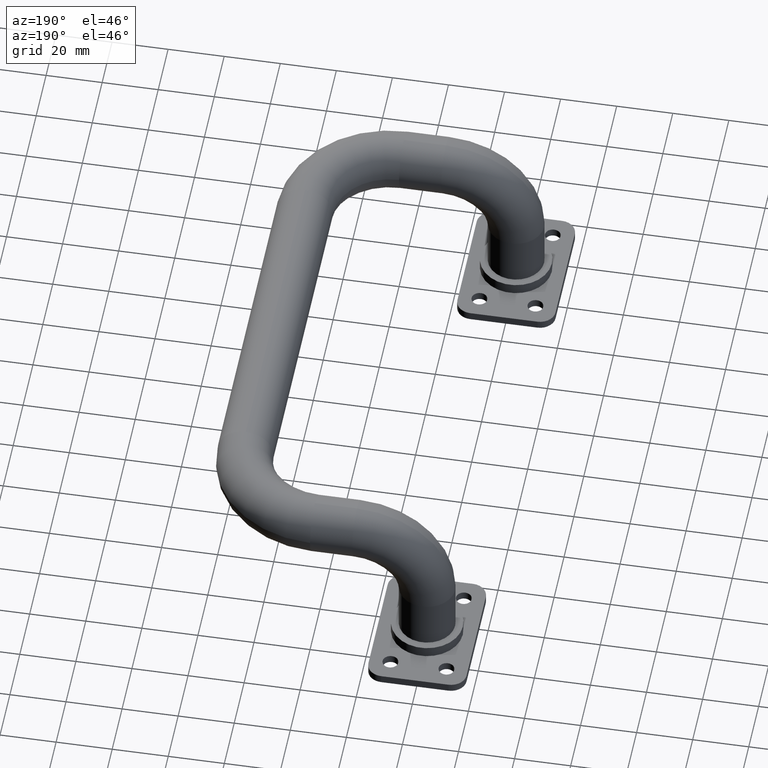
[diagram: clean part render]
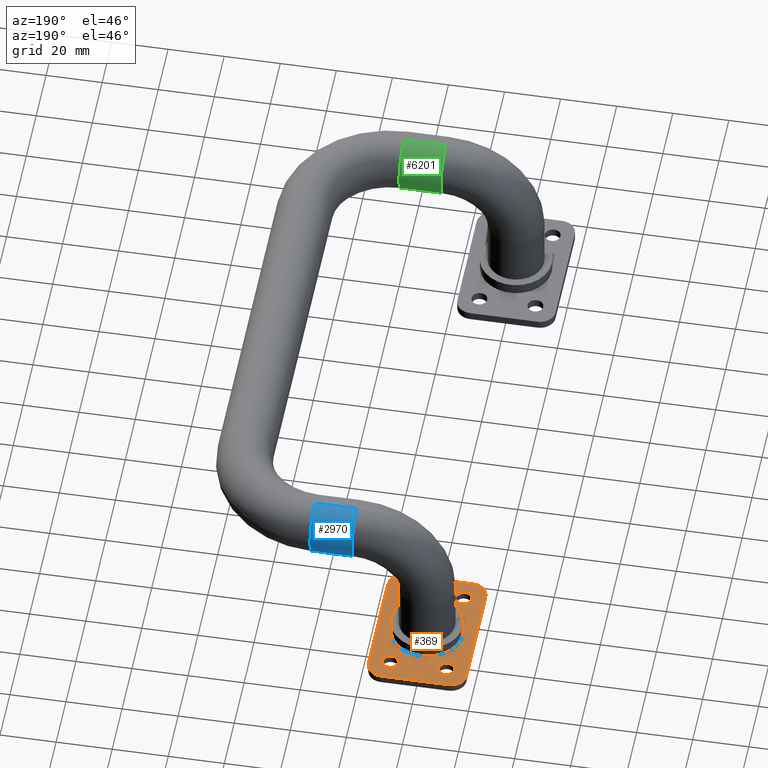
[diagram: same view with three faces highlighted in distinct colors, each labeled with its STEP entity id]
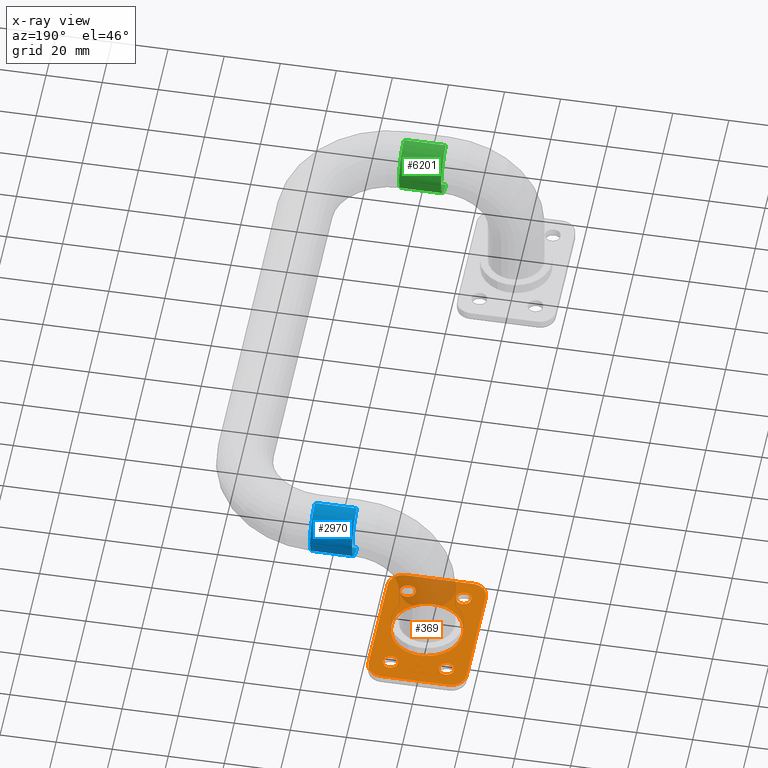
[diagram: x-ray of the same camera — body ghosted, the three highlighted faces saturated]
A machine part, auxiliary view with three faces highlighted in distinct colors.
The next image is the same camera in x-ray (body ghosted, the three faces saturated) — at least one of them is partly hidden behind the body in this view.
Their STEP definitions:

[orange] entity #369 — the highlighted planar face has unit normal (0, 0, -1).
#236 = DIRECTION ( 'NONE',  ( 0.000000000000000000, -0.000000000000000000, 1.000000000000000000 ) ) ;
#244 = AXIS2_PLACEMENT_3D ( 'NONE', #7067, #236, #5614 ) ;
#246 = CARTESIAN_POINT ( 'NONE',  ( -10.00000000000000533, 72.49999999999998579, 3.000000000000000000 ) ) ;
#272 = VERTEX_POINT ( 'NONE', #4101 ) ;
#369 = ADVANCED_FACE ( 'NONE', ( #6875, #7717, #1266, #3383, #8926, #755 ), #4878, .F. ) ;
#388 = EDGE_CURVE ( 'NONE', #272, #9754, #1256, .T. ) ;
#468 = EDGE_CURVE ( 'NONE', #3583, #5399, #1526, .T. ) ;
#524 = DIRECTION ( 'NONE',  ( 0.000000000000000000, 0.000000000000000000, -1.000000000000000000 ) ) ;
#628 = ORIENTED_EDGE ( 'NONE', *, *, #4824, .F. ) ;
#671 = AXIS2_PLACEMENT_3D ( 'NONE', #5270, #5212, #4433 ) ;
#720 = CARTESIAN_POINT ( 'NONE',  ( -7.200000000000007283, 72.49999999999998579, 3.000000000000000000 ) ) ;
#755 = FACE_BOUND ( 'NONE', #2629, .T. ) ;
#780 = AXIS2_PLACEMENT_3D ( 'NONE', #4768, #4701, #3075 ) ;
#798 = DIRECTION ( 'NONE',  ( 0.000000000000000000, -0.000000000000000000, 1.000000000000000000 ) ) ;
#809 = DIRECTION ( 'NONE',  ( -1.387778780781445676E-16, -1.000000000000000000, 0.000000000000000000 ) ) ;
#974 = ORIENTED_EDGE ( 'NONE', *, *, #3792, .F. ) ;
#991 = VERTEX_POINT ( 'NONE', #1914 ) ;
#1233 = EDGE_LOOP ( 'NONE', ( #628, #2839, #974, #2896, #1866, #7324, #4011, #5025 ) ) ;
#1241 = DIRECTION ( 'NONE',  ( 0.000000000000000000, -0.000000000000000000, 1.000000000000000000 ) ) ;
#1254 = CIRCLE ( 'NONE', #9539, 2.799999999999997158 ) ;
#1256 = CIRCLE ( 'NONE', #3942, 2.799999999999997158 ) ;
#1266 = FACE_BOUND ( 'NONE', #8265, .T. ) ;
#1526 = CIRCLE ( 'NONE', #671, 2.799999999999997158 ) ;
#1553 = CARTESIAN_POINT ( 'NONE',  ( -12.00000000000001066, 70.50000000000000000, 3.000000000000000000 ) ) ;
#1555 = EDGE_LOOP ( 'NONE', ( #7914, #7457 ) ) ;
#1558 = CIRCLE ( 'NONE', #4240, 5.500000000000000000 ) ;
#1598 = VERTEX_POINT ( 'NONE', #4202 ) ;
#1699 = CARTESIAN_POINT ( 'NONE',  ( 12.79999999999999183, 72.49999999999998579, 3.000000000000000000 ) ) ;
#1709 = CARTESIAN_POINT ( 'NONE',  ( -12.00000000000001066, 64.99999999999998579, 3.000000000000000000 ) ) ;
#1866 = ORIENTED_EDGE ( 'NONE', *, *, #7658, .F. ) ;
#1900 = VERTEX_POINT ( 'NONE', #5418 ) ;
#1914 = CARTESIAN_POINT ( 'NONE',  ( 17.50000000000000000, 109.4999999999999858, 3.000000000000000000 ) ) ;
#2107 = DIRECTION ( 'NONE',  ( -1.000000000000000000, 0.000000000000000000, 0.000000000000000000 ) ) ;
#2168 = DIRECTION ( 'NONE',  ( 0.000000000000000000, -0.000000000000000000, 1.000000000000000000 ) ) ;
#2189 = CARTESIAN_POINT ( 'NONE',  ( 17.50000000000000000, 114.9999999999999858, 3.000000000000000000 ) ) ;
#2197 = DIRECTION ( 'NONE',  ( -1.000000000000000000, 0.000000000000000000, 0.000000000000000000 ) ) ;
#2290 = CARTESIAN_POINT ( 'NONE',  ( -1.393068780271001328E-15, 90.00000000000000000, 3.000000000000000000 ) ) ;
#2303 = DIRECTION ( 'NONE',  ( -1.000000000000000000, 0.000000000000000000, 0.000000000000000000 ) ) ;
#2353 = CARTESIAN_POINT ( 'NONE',  ( 12.79999999999999538, 107.4999999999999858, 3.000000000000000000 ) ) ;
#2357 = CARTESIAN_POINT ( 'NONE',  ( -12.75000000000000000, 90.00000000000000000, 3.000000000000000000 ) ) ;
#2479 = AXIS2_PLACEMENT_3D ( 'NONE', #8093, #1241, #6600 ) ;
#2481 = CIRCLE ( 'NONE', #9364, 2.799999999999997602 ) ;
#2483 = VERTEX_POINT ( 'NONE', #6283 ) ;
#2546 = DIRECTION ( 'NONE',  ( 0.000000000000000000, 0.000000000000000000, -1.000000000000000000 ) ) ;
#2629 = EDGE_LOOP ( 'NONE', ( #9452, #2901 ) ) ;
#2678 = DIRECTION ( 'NONE',  ( 0.000000000000000000, -0.000000000000000000, 1.000000000000000000 ) ) ;
#2839 = ORIENTED_EDGE ( 'NONE', *, *, #6858, .T. ) ;
#2896 = ORIENTED_EDGE ( 'NONE', *, *, #5530, .T. ) ;
#2898 = DIRECTION ( 'NONE',  ( -1.000000000000000000, 0.000000000000000000, 0.000000000000000000 ) ) ;
#2901 = ORIENTED_EDGE ( 'NONE', *, *, #4809, .F. ) ;
#3035 = CIRCLE ( 'NONE', #4381, 5.500000000000000000 ) ;
#3075 = DIRECTION ( 'NONE',  ( -1.000000000000000000, 0.000000000000000000, 0.000000000000000000 ) ) ;
#3205 = VERTEX_POINT ( 'NONE', #5310 ) ;
#3383 = FACE_BOUND ( 'NONE', #8494, .T. ) ;
#3438 = CIRCLE ( 'NONE', #7244, 2.799999999999997602 ) ;
#3583 = VERTEX_POINT ( 'NONE', #5119 ) ;
#3677 = CIRCLE ( 'NONE', #2479, 5.500000000000000000 ) ;
#3755 = CIRCLE ( 'NONE', #780, 2.799999999999997158 ) ;
#3792 = EDGE_CURVE ( 'NONE', #9734, #5362, #5753, .T. ) ;
#3830 = CARTESIAN_POINT ( 'NONE',  ( -17.50000000000000711, 70.50000000000000000, 3.000000000000000000 ) ) ;
#3846 = EDGE_CURVE ( 'NONE', #991, #8681, #1558, .T. ) ;
#3942 = AXIS2_PLACEMENT_3D ( 'NONE', #246, #8612, #8019 ) ;
#3998 = VECTOR ( 'NONE', #8533, 1000.000000000000000 ) ;
#4011 = ORIENTED_EDGE ( 'NONE', *, *, #7573, .F. ) ;
#4101 = CARTESIAN_POINT ( 'NONE',  ( -12.80000000000000249, 72.49999999999998579, 3.000000000000000000 ) ) ;
#4174 = CARTESIAN_POINT ( 'NONE',  ( 0.000000000000000000, 0.000000000000000000, 3.000000000000000000 ) ) ;
#4202 = CARTESIAN_POINT ( 'NONE',  ( -12.00000000000000355, 114.9999999999999858, 3.000000000000000000 ) ) ;
#4240 = AXIS2_PLACEMENT_3D ( 'NONE', #7264, #2678, #7365 ) ;
#4267 = CIRCLE ( 'NONE', #9912, 2.799999999999997602 ) ;
#4290 = CARTESIAN_POINT ( 'NONE',  ( 9.999999999999998224, 107.4999999999999858, 3.000000000000000000 ) ) ;
#4304 = AXIS2_PLACEMENT_3D ( 'NONE', #1553, #798, #2303 ) ;
#4333 = EDGE_CURVE ( 'NONE', #5209, #6792, #5021, .T. ) ;
#4381 = AXIS2_PLACEMENT_3D ( 'NONE', #7495, #2168, #2898 ) ;
#4433 = DIRECTION ( 'NONE',  ( -1.000000000000000000, 0.000000000000000000, 0.000000000000000000 ) ) ;
#4561 = EDGE_CURVE ( 'NONE', #9334, #8492, #2481, .T. ) ;
#4667 = CARTESIAN_POINT ( 'NONE',  ( 17.50000000000000000, 114.9999999999999858, 3.000000000000000000 ) ) ;
#4669 = DIRECTION ( 'NONE',  ( 0.000000000000000000, 0.000000000000000000, -1.000000000000000000 ) ) ;
#4701 = DIRECTION ( 'NONE',  ( 0.000000000000000000, 0.000000000000000000, -1.000000000000000000 ) ) ;
#4722 = DIRECTION ( 'NONE',  ( -1.000000000000000000, 0.000000000000000000, 0.000000000000000000 ) ) ;
#4761 = EDGE_CURVE ( 'NONE', #9152, #1900, #3438, .T. ) ;
#4768 = CARTESIAN_POINT ( 'NONE',  ( -10.00000000000000533, 72.49999999999998579, 3.000000000000000000 ) ) ;
#4809 = EDGE_CURVE ( 'NONE', #6792, #5209, #5747, .T. ) ;
#4824 = EDGE_CURVE ( 'NONE', #5628, #3205, #7634, .T. ) ;
#4878 = PLANE ( 'NONE',  #5703 ) ;
#4928 = CARTESIAN_POINT ( 'NONE',  ( -17.50000000000000000, 114.9999999999999858, 3.000000000000000000 ) ) ;
#5021 = CIRCLE ( 'NONE', #5256, 12.74999999999999822 ) ;
#5025 = ORIENTED_EDGE ( 'NONE', *, *, #8368, .T. ) ;
#5094 = DIRECTION ( 'NONE',  ( -1.000000000000000000, 0.000000000000000000, 0.000000000000000000 ) ) ;
#5119 = CARTESIAN_POINT ( 'NONE',  ( -7.200000000000003730, 107.4999999999999858, 3.000000000000000000 ) ) ;
#5209 = VERTEX_POINT ( 'NONE', #2357 ) ;
#5212 = DIRECTION ( 'NONE',  ( 0.000000000000000000, 0.000000000000000000, -1.000000000000000000 ) ) ;
#5256 = AXIS2_PLACEMENT_3D ( 'NONE', #2290, #9134, #2197 ) ;
#5270 = CARTESIAN_POINT ( 'NONE',  ( -10.00000000000000178, 107.4999999999999858, 3.000000000000000000 ) ) ;
#5310 = CARTESIAN_POINT ( 'NONE',  ( -17.50000000000000000, 109.4999999999999858, 3.000000000000000000 ) ) ;
#5362 = VERTEX_POINT ( 'NONE', #1709 ) ;
#5399 = VERTEX_POINT ( 'NONE', #8902 ) ;
#5418 = CARTESIAN_POINT ( 'NONE',  ( 7.199999999999997513, 72.49999999999998579, 3.000000000000000000 ) ) ;
#5530 = EDGE_CURVE ( 'NONE', #9734, #2483, #3677, .T. ) ;
#5589 = CIRCLE ( 'NONE', #4304, 5.499999999999998224 ) ;
#5612 = VECTOR ( 'NONE', #9571, 1000.000000000000000 ) ;
#5614 = DIRECTION ( 'NONE',  ( -1.000000000000000000, 0.000000000000000000, 0.000000000000000000 ) ) ;
#5628 = VERTEX_POINT ( 'NONE', #3830 ) ;
#5703 = AXIS2_PLACEMENT_3D ( 'NONE', #4174, #6492, #7075 ) ;
#5747 = CIRCLE ( 'NONE', #244, 12.74999999999999822 ) ;
#5753 = LINE ( 'NONE', #8097, #9831 ) ;
#6048 = ORIENTED_EDGE ( 'NONE', *, *, #7693, .T. ) ;
#6196 = DIRECTION ( 'NONE',  ( 0.000000000000000000, 0.000000000000000000, -1.000000000000000000 ) ) ;
#6283 = CARTESIAN_POINT ( 'NONE',  ( 17.49999999999999645, 70.50000000000000000, 3.000000000000000000 ) ) ;
#6491 = CARTESIAN_POINT ( 'NONE',  ( 12.00000000000000000, 114.9999999999999858, 3.000000000000000000 ) ) ;
#6492 = DIRECTION ( 'NONE',  ( 0.000000000000000000, 0.000000000000000000, -1.000000000000000000 ) ) ;
#6600 = DIRECTION ( 'NONE',  ( -1.000000000000000000, 0.000000000000000000, 0.000000000000000000 ) ) ;
#6792 = VERTEX_POINT ( 'NONE', #8229 ) ;
#6838 = ORIENTED_EDGE ( 'NONE', *, *, #388, .T. ) ;
#6858 = EDGE_CURVE ( 'NONE', #5628, #5362, #5589, .T. ) ;
#6875 = FACE_OUTER_BOUND ( 'NONE', #1233, .T. ) ;
#6940 = EDGE_CURVE ( 'NONE', #8492, #9334, #4267, .T. ) ;
#7067 = CARTESIAN_POINT ( 'NONE',  ( -1.393068780271001328E-15, 90.00000000000000000, 3.000000000000000000 ) ) ;
#7075 = DIRECTION ( 'NONE',  ( -1.000000000000000000, 0.000000000000000000, 0.000000000000000000 ) ) ;
#7103 = ORIENTED_EDGE ( 'NONE', *, *, #4761, .T. ) ;
#7134 = CARTESIAN_POINT ( 'NONE',  ( 9.999999999999998224, 107.4999999999999858, 3.000000000000000000 ) ) ;
#7237 = DIRECTION ( 'NONE',  ( -1.000000000000000000, 0.000000000000000000, 0.000000000000000000 ) ) ;
#7238 = VECTOR ( 'NONE', #809, 1000.000000000000000 ) ;
#7244 = AXIS2_PLACEMENT_3D ( 'NONE', #9266, #4669, #8534 ) ;
#7264 = CARTESIAN_POINT ( 'NONE',  ( 12.00000000000000000, 109.4999999999999858, 3.000000000000000000 ) ) ;
#7324 = ORIENTED_EDGE ( 'NONE', *, *, #3846, .T. ) ;
#7365 = DIRECTION ( 'NONE',  ( -1.000000000000000000, 0.000000000000000000, 0.000000000000000000 ) ) ;
#7374 = CARTESIAN_POINT ( 'NONE',  ( 7.200000000000001066, 107.4999999999999858, 3.000000000000000000 ) ) ;
#7457 = ORIENTED_EDGE ( 'NONE', *, *, #6940, .T. ) ;
#7495 = CARTESIAN_POINT ( 'NONE',  ( -12.00000000000000178, 109.4999999999999858, 3.000000000000000000 ) ) ;
#7573 = EDGE_CURVE ( 'NONE', #1598, #8681, #9899, .T. ) ;
#7634 = LINE ( 'NONE', #4928, #5612 ) ;
#7658 = EDGE_CURVE ( 'NONE', #991, #2483, #9549, .T. ) ;
#7693 = EDGE_CURVE ( 'NONE', #9754, #272, #3755, .T. ) ;
#7717 = FACE_BOUND ( 'NONE', #1555, .T. ) ;
#7726 = CARTESIAN_POINT ( 'NONE',  ( 9.999999999999994671, 72.49999999999998579, 3.000000000000000000 ) ) ;
#7914 = ORIENTED_EDGE ( 'NONE', *, *, #4561, .T. ) ;
#8019 = DIRECTION ( 'NONE',  ( -1.000000000000000000, 0.000000000000000000, 0.000000000000000000 ) ) ;
#8049 = ORIENTED_EDGE ( 'NONE', *, *, #468, .T. ) ;
#8093 = CARTESIAN_POINT ( 'NONE',  ( 11.99999999999999467, 70.50000000000000000, 3.000000000000000000 ) ) ;
#8097 = CARTESIAN_POINT ( 'NONE',  ( 17.49999999999999645, 64.99999999999998579, 3.000000000000000000 ) ) ;
#8229 = CARTESIAN_POINT ( 'NONE',  ( 12.74999999999999645, 90.00000000000000000, 3.000000000000000000 ) ) ;
#8265 = EDGE_LOOP ( 'NONE', ( #8675, #8049 ) ) ;
#8368 = EDGE_CURVE ( 'NONE', #1598, #3205, #3035, .T. ) ;
#8492 = VERTEX_POINT ( 'NONE', #2353 ) ;
#8494 = EDGE_LOOP ( 'NONE', ( #9820, #7103 ) ) ;
#8533 = DIRECTION ( 'NONE',  ( 1.000000000000000000, -0.000000000000000000, -0.000000000000000000 ) ) ;
#8534 = DIRECTION ( 'NONE',  ( -1.000000000000000000, 0.000000000000000000, 0.000000000000000000 ) ) ;
#8612 = DIRECTION ( 'NONE',  ( 0.000000000000000000, 0.000000000000000000, -1.000000000000000000 ) ) ;
#8675 = ORIENTED_EDGE ( 'NONE', *, *, #8930, .T. ) ;
#8681 = VERTEX_POINT ( 'NONE', #6491 ) ;
#8836 = EDGE_LOOP ( 'NONE', ( #6838, #6048 ) ) ;
#8874 = DIRECTION ( 'NONE',  ( 0.000000000000000000, 0.000000000000000000, -1.000000000000000000 ) ) ;
#8902 = CARTESIAN_POINT ( 'NONE',  ( -12.79999999999999893, 107.4999999999999858, 3.000000000000000000 ) ) ;
#8909 = CARTESIAN_POINT ( 'NONE',  ( 11.99999999999999467, 64.99999999999998579, 3.000000000000000000 ) ) ;
#8926 = FACE_BOUND ( 'NONE', #8836, .T. ) ;
#8930 = EDGE_CURVE ( 'NONE', #5399, #3583, #1254, .T. ) ;
#9134 = DIRECTION ( 'NONE',  ( 0.000000000000000000, -0.000000000000000000, 1.000000000000000000 ) ) ;
#9152 = VERTEX_POINT ( 'NONE', #1699 ) ;
#9266 = CARTESIAN_POINT ( 'NONE',  ( 9.999999999999994671, 72.49999999999998579, 3.000000000000000000 ) ) ;
#9277 = AXIS2_PLACEMENT_3D ( 'NONE', #7726, #6196, #4722 ) ;
#9334 = VERTEX_POINT ( 'NONE', #7374 ) ;
#9364 = AXIS2_PLACEMENT_3D ( 'NONE', #7134, #2546, #7237 ) ;
#9452 = ORIENTED_EDGE ( 'NONE', *, *, #4333, .F. ) ;
#9516 = CIRCLE ( 'NONE', #9277, 2.799999999999997602 ) ;
#9539 = AXIS2_PLACEMENT_3D ( 'NONE', #9722, #524, #2107 ) ;
#9549 = LINE ( 'NONE', #4667, #7238 ) ;
#9571 = DIRECTION ( 'NONE',  ( 1.387778780781445676E-16, 1.000000000000000000, -0.000000000000000000 ) ) ;
#9702 = DIRECTION ( 'NONE',  ( -1.000000000000000000, 0.000000000000000000, 0.000000000000000000 ) ) ;
#9722 = CARTESIAN_POINT ( 'NONE',  ( -10.00000000000000178, 107.4999999999999858, 3.000000000000000000 ) ) ;
#9734 = VERTEX_POINT ( 'NONE', #8909 ) ;
#9754 = VERTEX_POINT ( 'NONE', #720 ) ;
#9820 = ORIENTED_EDGE ( 'NONE', *, *, #9841, .T. ) ;
#9831 = VECTOR ( 'NONE', #5094, 1000.000000000000000 ) ;
#9841 = EDGE_CURVE ( 'NONE', #1900, #9152, #9516, .T. ) ;
#9899 = LINE ( 'NONE', #2189, #3998 ) ;
#9912 = AXIS2_PLACEMENT_3D ( 'NONE', #4290, #8874, #9702 ) ;

[blue] entity #2970 — the highlighted cylindrical surface (edge-blend (fillet) strip) has radius 10 mm, axis along (1, 0, 0).
#115 = VERTEX_POINT ( 'NONE', #9454 ) ;
#521 = ORIENTED_EDGE ( 'NONE', *, *, #2813, .F. ) ;
#675 = CARTESIAN_POINT ( 'NONE',  ( 25.00000000000000000, 90.00000000000000000, 40.00000000000000000 ) ) ;
#728 = EDGE_CURVE ( 'NONE', #1641, #2954, #9690, .T. ) ;
#751 = CARTESIAN_POINT ( 'NONE',  ( 40.00000000000000711, 90.00000000000000000, 50.00000000000000000 ) ) ;
#1483 = VERTEX_POINT ( 'NONE', #3958 ) ;
#1641 = VERTEX_POINT ( 'NONE', #8779 ) ;
#2170 = DIRECTION ( 'NONE',  ( 1.000000000000000000, 0.000000000000000000, 6.938893903907228378E-17 ) ) ;
#2243 = AXIS2_PLACEMENT_3D ( 'NONE', #4637, #2283, #8470 ) ;
#2283 = DIRECTION ( 'NONE',  ( 1.000000000000000000, 0.000000000000000000, 0.000000000000000000 ) ) ;
#2428 = AXIS2_PLACEMENT_3D ( 'NONE', #751, #2170, #8415 ) ;
#2793 = VECTOR ( 'NONE', #6716, 1000.000000000000000 ) ;
#2813 = EDGE_CURVE ( 'NONE', #9042, #1483, #7059, .T. ) ;
#2887 = EDGE_CURVE ( 'NONE', #1483, #115, #6604, .T. ) ;
#2893 = CARTESIAN_POINT ( 'NONE',  ( 25.00000000000000000, 90.00000000000000000, 60.00000000000000711 ) ) ;
#2954 = VERTEX_POINT ( 'NONE', #8083 ) ;
#2970 = ADVANCED_FACE ( 'NONE', ( #8270 ), #5646, .T. ) ;
#3191 = EDGE_CURVE ( 'NONE', #1641, #9042, #9483, .T. ) ;
#3244 = CARTESIAN_POINT ( 'NONE',  ( 40.00000000000000711, 90.00000000000000000, 50.00000000000000000 ) ) ;
#3337 = VECTOR ( 'NONE', #8250, 1000.000000000000000 ) ;
#3607 = ORIENTED_EDGE ( 'NONE', *, *, #728, .T. ) ;
#3958 = CARTESIAN_POINT ( 'NONE',  ( 40.00000000000000711, 100.0000000000000000, 50.00000000000000000 ) ) ;
#3989 = LINE ( 'NONE', #2893, #2793 ) ;
#4567 = DIRECTION ( 'NONE',  ( 0.000000000000000000, 0.000000000000000000, -1.000000000000000000 ) ) ;
#4637 = CARTESIAN_POINT ( 'NONE',  ( 25.00000000000000000, 90.00000000000000000, 50.00000000000000000 ) ) ;
#5646 = CYLINDRICAL_SURFACE ( 'NONE', #2243, 10.00000000000000178 ) ;
#5731 = AXIS2_PLACEMENT_3D ( 'NONE', #3244, #6386, #9438 ) ;
#5991 = CARTESIAN_POINT ( 'NONE',  ( 25.00000000000000000, 90.00000000000000000, 50.00000000000000000 ) ) ;
#6153 = ORIENTED_EDGE ( 'NONE', *, *, #8879, .T. ) ;
#6386 = DIRECTION ( 'NONE',  ( 1.000000000000000000, 0.000000000000000000, 6.938893903907228378E-17 ) ) ;
#6604 = CIRCLE ( 'NONE', #5731, 10.00000000000000178 ) ;
#6716 = DIRECTION ( 'NONE',  ( 1.000000000000000000, 0.000000000000000000, 0.000000000000000000 ) ) ;
#7030 = ORIENTED_EDGE ( 'NONE', *, *, #2887, .F. ) ;
#7059 = CIRCLE ( 'NONE', #2428, 10.00000000000000178 ) ;
#7220 = AXIS2_PLACEMENT_3D ( 'NONE', #5991, #7606, #4567 ) ;
#7584 = CARTESIAN_POINT ( 'NONE',  ( 40.00000000000000711, 90.00000000000000000, 40.00000000000000000 ) ) ;
#7606 = DIRECTION ( 'NONE',  ( 1.000000000000000000, 0.000000000000000000, 6.938893903907228378E-17 ) ) ;
#7785 = EDGE_LOOP ( 'NONE', ( #3607, #6153, #7030, #521, #9367 ) ) ;
#8083 = CARTESIAN_POINT ( 'NONE',  ( 25.00000000000000000, 90.00000000000000000, 60.00000000000000711 ) ) ;
#8250 = DIRECTION ( 'NONE',  ( 1.000000000000000000, 0.000000000000000000, 0.000000000000000000 ) ) ;
#8270 = FACE_OUTER_BOUND ( 'NONE', #7785, .T. ) ;
#8415 = DIRECTION ( 'NONE',  ( 0.000000000000000000, 0.000000000000000000, -1.000000000000000000 ) ) ;
#8470 = DIRECTION ( 'NONE',  ( 0.000000000000000000, 0.000000000000000000, -1.000000000000000000 ) ) ;
#8779 = CARTESIAN_POINT ( 'NONE',  ( 25.00000000000000000, 90.00000000000000000, 40.00000000000000000 ) ) ;
#8879 = EDGE_CURVE ( 'NONE', #2954, #115, #3989, .T. ) ;
#9042 = VERTEX_POINT ( 'NONE', #7584 ) ;
#9367 = ORIENTED_EDGE ( 'NONE', *, *, #3191, .F. ) ;
#9438 = DIRECTION ( 'NONE',  ( 0.000000000000000000, 0.000000000000000000, -1.000000000000000000 ) ) ;
#9454 = CARTESIAN_POINT ( 'NONE',  ( 40.00000000000000711, 90.00000000000000000, 60.00000000000000711 ) ) ;
#9483 = LINE ( 'NONE', #675, #3337 ) ;
#9690 = CIRCLE ( 'NONE', #7220, 10.00000000000000178 ) ;

[green] entity #6201 — the highlighted cylindrical surface (edge-blend (fillet) strip) has radius 10 mm, axis along (1, 0, 0).
#18 = VERTEX_POINT ( 'NONE', #5366 ) ;
#360 = ORIENTED_EDGE ( 'NONE', *, *, #4969, .T. ) ;
#367 = CARTESIAN_POINT ( 'NONE',  ( 25.00000000000000000, -90.00000000000000000, 60.00000000000002132 ) ) ;
#404 = EDGE_CURVE ( 'NONE', #9809, #7024, #3135, .T. ) ;
#419 = ORIENTED_EDGE ( 'NONE', *, *, #9779, .F. ) ;
#464 = CARTESIAN_POINT ( 'NONE',  ( 25.00000000000000000, -90.00000000000000000, 40.00000000000001421 ) ) ;
#748 = CARTESIAN_POINT ( 'NONE',  ( 40.00000000000000711, -90.00000000000000000, 50.00000000000001421 ) ) ;
#941 = CARTESIAN_POINT ( 'NONE',  ( 40.00000000000000711, -80.00000000000000000, 50.00000000000000711 ) ) ;
#1044 = CYLINDRICAL_SURFACE ( 'NONE', #8396, 10.00000000000000178 ) ;
#1186 = CIRCLE ( 'NONE', #9053, 10.00000000000000178 ) ;
#1677 = ORIENTED_EDGE ( 'NONE', *, *, #3768, .T. ) ;
#1690 = CARTESIAN_POINT ( 'NONE',  ( 25.00000000000000000, -90.00000000000000000, 50.00000000000001421 ) ) ;
#2051 = DIRECTION ( 'NONE',  ( 0.000000000000000000, 0.000000000000000000, -1.000000000000000000 ) ) ;
#2924 = ORIENTED_EDGE ( 'NONE', *, *, #404, .F. ) ;
#2938 = VECTOR ( 'NONE', #6581, 1000.000000000000000 ) ;
#3135 = CIRCLE ( 'NONE', #9938, 10.00000000000000178 ) ;
#3136 = VERTEX_POINT ( 'NONE', #7450 ) ;
#3768 = EDGE_CURVE ( 'NONE', #3136, #9117, #1186, .T. ) ;
#3799 = ORIENTED_EDGE ( 'NONE', *, *, #6258, .T. ) ;
#3829 = DIRECTION ( 'NONE',  ( -1.000000000000000000, -9.629649721936179265E-33, -6.938893903907228378E-17 ) ) ;
#4102 = VECTOR ( 'NONE', #8264, 1000.000000000000000 ) ;
#4214 = DIRECTION ( 'NONE',  ( -1.000000000000000000, -9.629649721936179265E-33, -6.938893903907228378E-17 ) ) ;
#4682 = EDGE_LOOP ( 'NONE', ( #2924, #3799, #1677, #360, #419 ) ) ;
#4969 = EDGE_CURVE ( 'NONE', #9117, #18, #7866, .T. ) ;
#5358 = FACE_OUTER_BOUND ( 'NONE', #4682, .T. ) ;
#5366 = CARTESIAN_POINT ( 'NONE',  ( 40.00000000000000711, -90.00000000000000000, 40.00000000000001421 ) ) ;
#6075 = CARTESIAN_POINT ( 'NONE',  ( 25.00000000000000000, -90.00000000000000000, 40.00000000000001421 ) ) ;
#6201 = ADVANCED_FACE ( 'NONE', ( #5358 ), #1044, .T. ) ;
#6229 = AXIS2_PLACEMENT_3D ( 'NONE', #8006, #6339, #8670 ) ;
#6258 = EDGE_CURVE ( 'NONE', #9809, #3136, #7011, .T. ) ;
#6339 = DIRECTION ( 'NONE',  ( -1.000000000000000000, -9.629649721936179265E-33, -6.938893903907228378E-17 ) ) ;
#6581 = DIRECTION ( 'NONE',  ( 1.000000000000000000, 0.000000000000000000, 0.000000000000000000 ) ) ;
#6593 = DIRECTION ( 'NONE',  ( 0.000000000000000000, 0.000000000000000000, -1.000000000000000000 ) ) ;
#6946 = CARTESIAN_POINT ( 'NONE',  ( 25.00000000000000000, -90.00000000000000000, 60.00000000000002132 ) ) ;
#7011 = LINE ( 'NONE', #367, #2938 ) ;
#7024 = VERTEX_POINT ( 'NONE', #464 ) ;
#7027 = DIRECTION ( 'NONE',  ( 1.000000000000000000, 0.000000000000000000, 0.000000000000000000 ) ) ;
#7450 = CARTESIAN_POINT ( 'NONE',  ( 40.00000000000000711, -90.00000000000000000, 60.00000000000002132 ) ) ;
#7866 = CIRCLE ( 'NONE', #6229, 10.00000000000000178 ) ;
#8006 = CARTESIAN_POINT ( 'NONE',  ( 40.00000000000000711, -90.00000000000000000, 50.00000000000001421 ) ) ;
#8264 = DIRECTION ( 'NONE',  ( 1.000000000000000000, 0.000000000000000000, 0.000000000000000000 ) ) ;
#8396 = AXIS2_PLACEMENT_3D ( 'NONE', #1690, #7027, #9641 ) ;
#8670 = DIRECTION ( 'NONE',  ( 0.000000000000000000, 0.000000000000000000, -1.000000000000000000 ) ) ;
#9053 = AXIS2_PLACEMENT_3D ( 'NONE', #748, #3829, #2051 ) ;
#9117 = VERTEX_POINT ( 'NONE', #941 ) ;
#9586 = CARTESIAN_POINT ( 'NONE',  ( 25.00000000000000000, -90.00000000000000000, 50.00000000000001421 ) ) ;
#9639 = LINE ( 'NONE', #6075, #4102 ) ;
#9641 = DIRECTION ( 'NONE',  ( 0.000000000000000000, 0.000000000000000000, -1.000000000000000000 ) ) ;
#9779 = EDGE_CURVE ( 'NONE', #7024, #18, #9639, .T. ) ;
#9809 = VERTEX_POINT ( 'NONE', #6946 ) ;
#9938 = AXIS2_PLACEMENT_3D ( 'NONE', #9586, #4214, #6593 ) ;